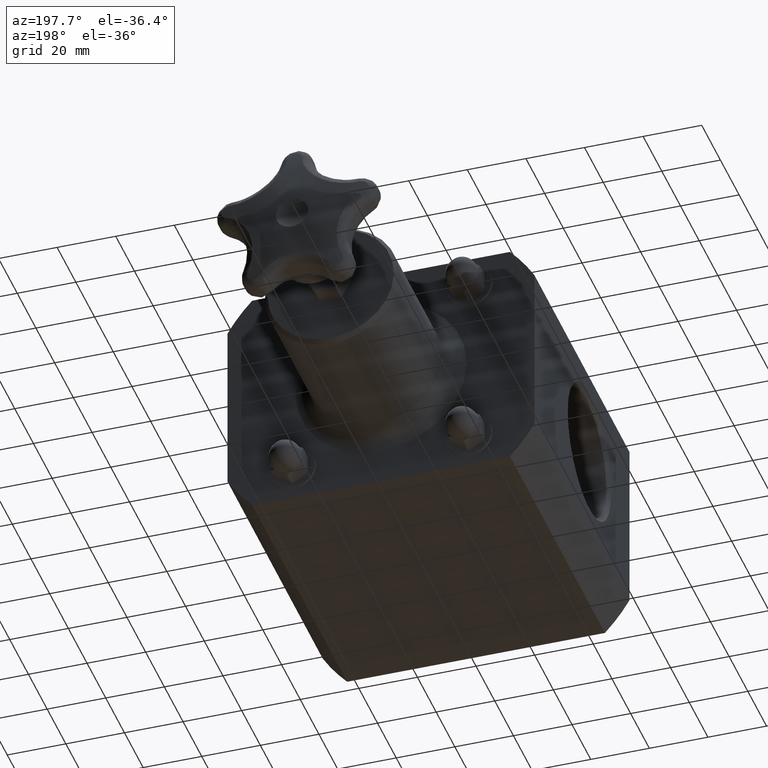
[diagram: clean part render]
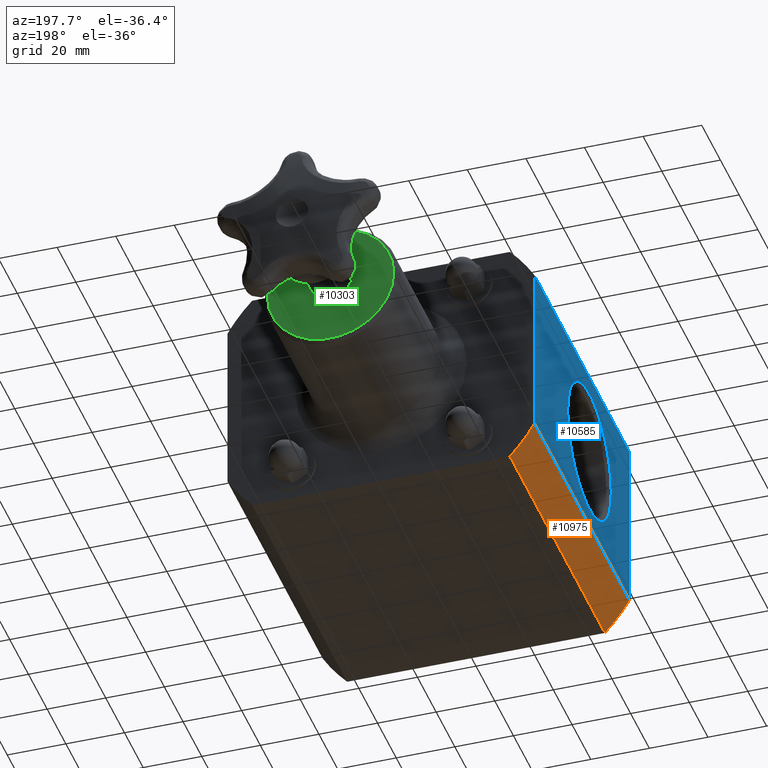
[diagram: same view with three faces highlighted in distinct colors, each labeled with its STEP entity id]
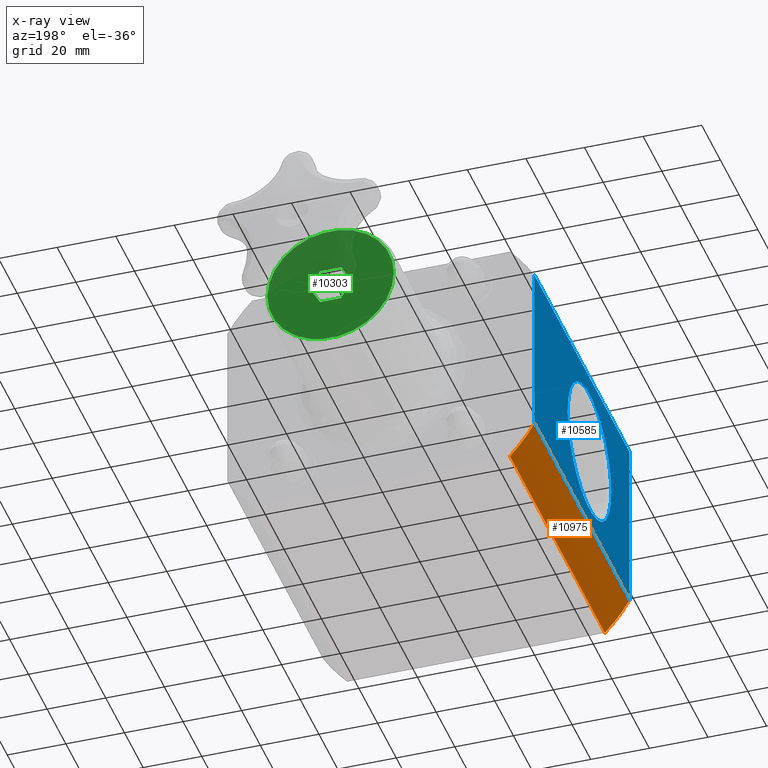
[diagram: x-ray of the same camera — body ghosted, the three highlighted faces saturated]
A machine part, auxiliary view with three faces highlighted in distinct colors.
The next image is the same camera in x-ray (body ghosted, the three faces saturated) — at least one of them is partly hidden behind the body in this view.
Their STEP definitions:

[orange] entity #10975 — the highlighted cylindrical surface (partial cylindrical patch) has radius 60.325 mm, axis along (0, 1, 0).
#10548=CARTESIAN_POINT('',(-2.062500000000000,0.0,-1.177590230088548));
#10549=VERTEX_POINT('',#10548);
#10550=CARTESIAN_POINT('',(-2.062500000000000,4.000000000000001,-1.177590230088548));
#10551=VERTEX_POINT('',#10550);
#10552=CARTESIAN_POINT('',(-2.062500000000000,0.0,-1.177590230088548));
#10553=DIRECTION('',(0.0,1.0,0.0));
#10554=VECTOR('',#10553,4.000000000000001);
#10555=LINE('',#10552,#10554);
#10556=EDGE_CURVE('',#10549,#10551,#10555,.T.);
#10943=CARTESIAN_POINT('',(0.0,0.0,0.0));
#10944=DIRECTION('',(0.0,1.0,0.0));
#10945=DIRECTION('',(0.729284550555317,0.0,0.684210526315790));
#10946=AXIS2_PLACEMENT_3D('',#10943,#10944,#10945);
#10947=CYLINDRICAL_SURFACE('',#10946,2.375000000000000);
#10948=CARTESIAN_POINT('',(-1.732050807568877,0.0,-1.625000000000000));
#10949=VERTEX_POINT('',#10948);
#10950=CARTESIAN_POINT('',(-1.732050807568877,4.000000000000001,-1.625000000000000));
#10951=VERTEX_POINT('',#10950);
#10952=CARTESIAN_POINT('',(-1.732050807568877,0.0,-1.625000000000000));
#10953=DIRECTION('',(0.0,1.0,0.0));
#10954=VECTOR('',#10953,4.000000000000001);
#10955=LINE('',#10952,#10954);
#10956=EDGE_CURVE('',#10949,#10951,#10955,.T.);
#10957=ORIENTED_EDGE('',*,*,#10956,.F.);
#10958=CARTESIAN_POINT('',(0.0,0.0,0.0));
#10959=DIRECTION('',(0.0,-1.0,0.0));
#10960=DIRECTION('',(0.729284550555317,0.0,0.684210526315790));
#10961=AXIS2_PLACEMENT_3D('',#10958,#10959,#10960);
#10962=CIRCLE('',#10961,2.375000000000000);
#10963=EDGE_CURVE('',#10549,#10949,#10962,.T.);
#10964=ORIENTED_EDGE('',*,*,#10963,.F.);
#10965=ORIENTED_EDGE('',*,*,#10556,.T.);
#10966=CARTESIAN_POINT('',(-1.639109E-016,4.000000000000001,-3.278218E-016));
#10967=DIRECTION('',(0.0,-1.0,0.0));
#10968=DIRECTION('',(1.0,0.0,0.0));
#10969=AXIS2_PLACEMENT_3D('',#10966,#10967,#10968);
#10970=CIRCLE('',#10969,2.375000000000000);
#10971=EDGE_CURVE('',#10551,#10951,#10970,.T.);
#10972=ORIENTED_EDGE('',*,*,#10971,.T.);
#10973=EDGE_LOOP('',(#10957,#10964,#10965,#10972));
#10974=FACE_OUTER_BOUND('',#10973,.T.);
#10975=ADVANCED_FACE('',(#10974),#10947,.T.);

[blue] entity #10585 — the highlighted planar face has unit normal (-1, 0, 0).
#10519=CARTESIAN_POINT('',(-2.062500000000000,2.604187500000001,-1.123231E-016));
#10520=VERTEX_POINT('',#10519);
#10521=CARTESIAN_POINT('',(-2.062500000000000,1.687000000000001,0.0));
#10522=DIRECTION('',(-1.0,0.0,0.0));
#10523=DIRECTION('',(0.0,-1.0,0.0));
#10524=AXIS2_PLACEMENT_3D('',#10521,#10522,#10523);
#10525=CIRCLE('',#10524,0.917187500000000);
#10526=EDGE_CURVE('',#10520,#10520,#10525,.T.);
#10543=CARTESIAN_POINT('',(-2.062500000000000,0.0,1.177590230088548));
#10544=DIRECTION('',(-1.0,0.0,0.0));
#10545=DIRECTION('',(0.0,0.0,1.0));
#10546=AXIS2_PLACEMENT_3D('',#10543,#10544,#10545);
#10547=PLANE('',#10546);
#10548=CARTESIAN_POINT('',(-2.062500000000000,0.0,-1.177590230088548));
#10549=VERTEX_POINT('',#10548);
#10550=CARTESIAN_POINT('',(-2.062500000000000,4.000000000000001,-1.177590230088548));
#10551=VERTEX_POINT('',#10550);
#10552=CARTESIAN_POINT('',(-2.062500000000000,0.0,-1.177590230088548));
#10553=DIRECTION('',(0.0,1.0,0.0));
#10554=VECTOR('',#10553,4.000000000000001);
#10555=LINE('',#10552,#10554);
#10556=EDGE_CURVE('',#10549,#10551,#10555,.T.);
#10557=ORIENTED_EDGE('',*,*,#10556,.F.);
#10558=CARTESIAN_POINT('',(-2.062500000000000,0.0,1.177590230088548));
#10559=VERTEX_POINT('',#10558);
#10560=CARTESIAN_POINT('',(-2.062500000000000,0.0,1.177590230088548));
#10561=DIRECTION('',(0.0,0.0,-1.0));
#10562=VECTOR('',#10561,2.355180460177095);
#10563=LINE('',#10560,#10562);
#10564=EDGE_CURVE('',#10559,#10549,#10563,.T.);
#10565=ORIENTED_EDGE('',*,*,#10564,.F.);
#10566=CARTESIAN_POINT('',(-2.062500000000000,4.000000000000001,1.177590230088548));
#10567=VERTEX_POINT('',#10566);
#10568=CARTESIAN_POINT('',(-2.062500000000000,0.0,1.177590230088548));
#10569=DIRECTION('',(0.0,1.0,0.0));
#10570=VECTOR('',#10569,4.000000000000001);
#10571=LINE('',#10568,#10570);
#10572=EDGE_CURVE('',#10559,#10567,#10571,.T.);
#10573=ORIENTED_EDGE('',*,*,#10572,.T.);
#10574=CARTESIAN_POINT('',(-2.062500000000000,4.000000000000001,1.177590230088548));
#10575=DIRECTION('',(0.0,0.0,-1.0));
#10576=VECTOR('',#10575,2.355180460177096);
#10577=LINE('',#10574,#10576);
#10578=EDGE_CURVE('',#10567,#10551,#10577,.T.);
#10579=ORIENTED_EDGE('',*,*,#10578,.T.);
#10580=EDGE_LOOP('',(#10557,#10565,#10573,#10579));
#10581=FACE_OUTER_BOUND('',#10580,.T.);
#10582=ORIENTED_EDGE('',*,*,#10526,.F.);
#10583=EDGE_LOOP('',(#10582));
#10584=FACE_BOUND('',#10583,.T.);
#10585=ADVANCED_FACE('',(#10581,#10584),#10547,.T.);

[green] entity #10303 — the highlighted planar face has unit normal (0, 1, 0).
#7361=CARTESIAN_POINT('',(-0.282324281633727,6.125000000000001,-6.192816E-016));
#7362=VERTEX_POINT('',#7361);
#7369=CARTESIAN_POINT('',(-0.141162140816864,6.125000000000001,0.244500000000000));
#7370=VERTEX_POINT('',#7369);
#7371=CARTESIAN_POINT('',(-0.141162140816864,6.125000000000001,0.244500000000000));
#7372=DIRECTION('',(-0.500000000000000,0.0,-0.866025403784439));
#7373=VECTOR('',#7372,0.282324281633727);
#7374=LINE('',#7371,#7373);
#7375=EDGE_CURVE('',#7370,#7362,#7374,.T.);
#7392=CARTESIAN_POINT('',(-0.141162140816864,6.125000000000001,-0.244500000000000));
#7393=VERTEX_POINT('',#7392);
#7400=CARTESIAN_POINT('',(-0.282324281633728,6.125000000000001,-6.383782E-016));
#7401=DIRECTION('',(0.500000000000001,0.0,-0.866025403784438));
#7402=VECTOR('',#7401,0.282324281633727);
#7403=LINE('',#7400,#7402);
#7404=EDGE_CURVE('',#7362,#7393,#7403,.T.);
#7416=CARTESIAN_POINT('',(0.141162140816863,6.125000000000001,-0.244500000000000));
#7417=VERTEX_POINT('',#7416);
#7424=CARTESIAN_POINT('',(-0.141162140816864,6.125000000000001,-0.244500000000000));
#7425=DIRECTION('',(1.0,0.0,0.0));
#7426=VECTOR('',#7425,0.282324281633727);
#7427=LINE('',#7424,#7426);
#7428=EDGE_CURVE('',#7393,#7417,#7427,.T.);
#7440=CARTESIAN_POINT('',(0.282324281633726,6.125000000000001,-2.994593E-016));
#7441=VERTEX_POINT('',#7440);
#7448=CARTESIAN_POINT('',(0.141162140816863,6.125000000000001,-0.244500000000000));
#7449=DIRECTION('',(0.500000000000000,0.0,0.866025403784439));
#7450=VECTOR('',#7449,0.282324281633727);
#7451=LINE('',#7448,#7450);
#7452=EDGE_CURVE('',#7417,#7441,#7451,.T.);
#7464=CARTESIAN_POINT('',(0.141162140816863,6.125000000000001,0.244500000000000));
#7465=VERTEX_POINT('',#7464);
#7472=CARTESIAN_POINT('',(0.282324281633726,6.125000000000001,-3.191891E-016));
#7473=DIRECTION('',(-0.500000000000000,0.0,0.866025403784438));
#7474=VECTOR('',#7473,0.282324281633727);
#7475=LINE('',#7472,#7474);
#7476=EDGE_CURVE('',#7441,#7465,#7475,.T.);
#7489=CARTESIAN_POINT('',(0.141162140816863,6.125000000000001,0.244500000000000));
#7490=DIRECTION('',(-1.0,0.0,0.0));
#7491=VECTOR('',#7490,0.282324281633727);
#7492=LINE('',#7489,#7491);
#7493=EDGE_CURVE('',#7465,#7370,#7492,.T.);
#10279=CARTESIAN_POINT('',(0.518750000000000,6.125000000000001,-2.838473E-016));
#10280=DIRECTION('',(0.0,1.0,0.0));
#10281=DIRECTION('',(0.0,0.0,1.0));
#10282=AXIS2_PLACEMENT_3D('',#10279,#10280,#10281);
#10283=PLANE('',#10282);
#10284=CARTESIAN_POINT('',(0.850000000000000,6.125000000000001,-2.557672E-016));
#10285=VERTEX_POINT('',#10284);
#10286=CARTESIAN_POINT('',(-1.639109E-016,6.125000000000001,-3.278218E-016));
#10287=DIRECTION('',(0.0,-1.0,0.0));
#10288=DIRECTION('',(1.0,0.0,0.0));
#10289=AXIS2_PLACEMENT_3D('',#10286,#10287,#10288);
#10290=CIRCLE('',#10289,0.850000000000000);
#10291=EDGE_CURVE('',#10285,#10285,#10290,.T.);
#10292=ORIENTED_EDGE('',*,*,#10291,.F.);
#10293=EDGE_LOOP('',(#10292));
#10294=FACE_OUTER_BOUND('',#10293,.T.);
#10295=ORIENTED_EDGE('',*,*,#7375,.T.);
#10296=ORIENTED_EDGE('',*,*,#7404,.T.);
#10297=ORIENTED_EDGE('',*,*,#7428,.T.);
#10298=ORIENTED_EDGE('',*,*,#7452,.T.);
#10299=ORIENTED_EDGE('',*,*,#7476,.T.);
#10300=ORIENTED_EDGE('',*,*,#7493,.T.);
#10301=EDGE_LOOP('',(#10295,#10296,#10297,#10298,#10299,#10300));
#10302=FACE_BOUND('',#10301,.T.);
#10303=ADVANCED_FACE('',(#10294,#10302),#10283,.T.);